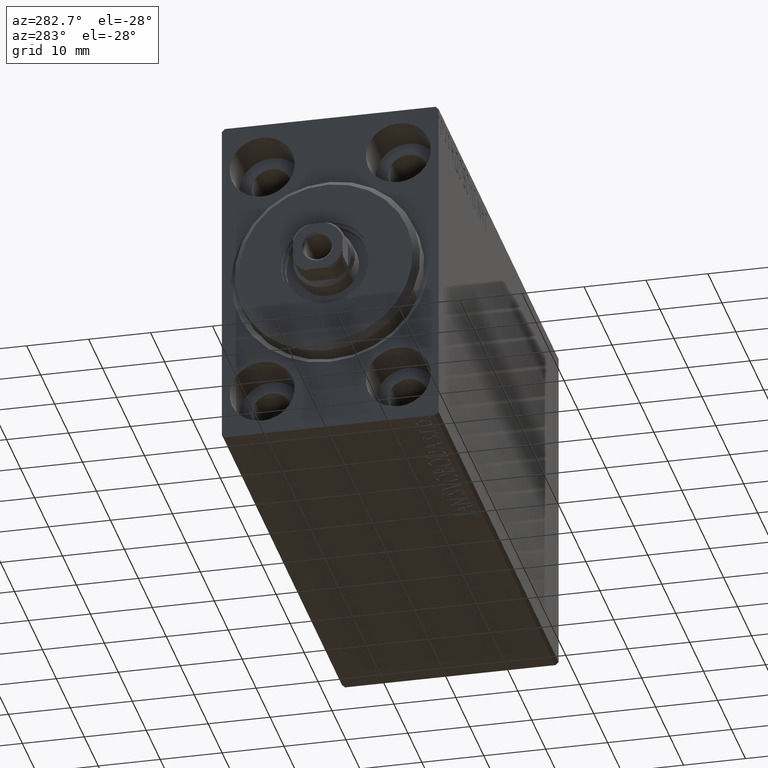
[diagram: clean part render]
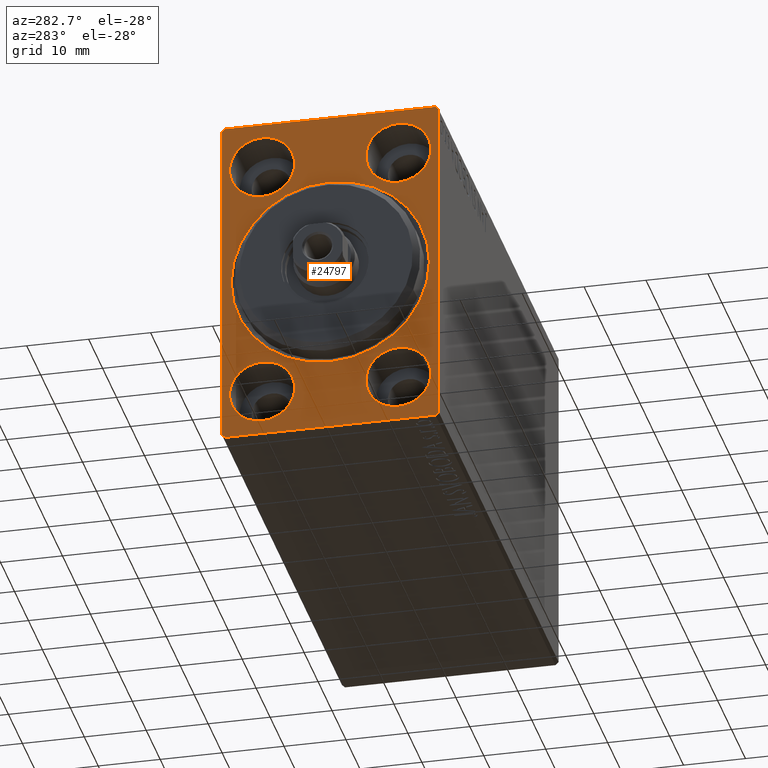
[diagram: same view with one face highlighted and labeled with its STEP entity id]
A machine part, auxiliary view. The second image highlights one B-rep face of the part: STEP entity #24797.
In plain terms, the highlighted planar face has unit normal (1, 0, 0).
Its self-contained STEP definition (entity closure, byte-faithful):
#317 = DIRECTION ( 'NONE',  ( -1.000000000000000000, 0.000000000000000000, 0.000000000000000000 ) ) ;
#969 = EDGE_LOOP ( 'NONE', ( #38564, #26691 ) ) ;
#1365 = DIRECTION ( 'NONE',  ( -0.000000000000000000, 0.7071067811865474617, 0.7071067811865474617 ) ) ;
#1456 = CARTESIAN_POINT ( 'NONE',  ( 0.000000000000000000, 0.000000000000000000, 0.000000000000000000 ) ) ;
#1699 = CARTESIAN_POINT ( 'NONE',  ( 0.000000000000000000, 17.00000000000000711, -27.50000000000000355 ) ) ;
#1811 = FACE_BOUND ( 'NONE', #10038, .T. ) ;
#1838 = CIRCLE ( 'NONE', #28082, 5.250000000000000888 ) ;
#1843 = CARTESIAN_POINT ( 'NONE',  ( 0.000000000000000000, 11.00000000000000355, 14.75000000000000000 ) ) ;
#1931 = DIRECTION ( 'NONE',  ( -0.000000000000000000, 0.7071067811865474617, -0.7071067811865474617 ) ) ;
#2011 = DIRECTION ( 'NONE',  ( 0.000000000000000000, 0.000000000000000000, 1.000000000000000000 ) ) ;
#2041 = CARTESIAN_POINT ( 'NONE',  ( 0.000000000000000000, -17.50000000000000000, -27.50000000000000355 ) ) ;
#2494 = EDGE_LOOP ( 'NONE', ( #8937, #17352 ) ) ;
#2536 = DIRECTION ( 'NONE',  ( 0.000000000000000000, -1.000000000000000000, -1.982541115402065110E-16 ) ) ;
#3260 = EDGE_LOOP ( 'NONE', ( #12695, #27696 ) ) ;
#3670 = CARTESIAN_POINT ( 'NONE',  ( 0.000000000000000000, -17.50000000000000000, 27.49999999999999645 ) ) ;
#3782 = DIRECTION ( 'NONE',  ( 0.000000000000000000, 0.000000000000000000, 1.000000000000000000 ) ) ;
#3990 = CIRCLE ( 'NONE', #34477, 5.250000000000000888 ) ;
#4132 = VERTEX_POINT ( 'NONE', #13405 ) ;
#4502 = VECTOR ( 'NONE', #1931, 1000.000000000000114 ) ;
#5329 = DIRECTION ( 'NONE',  ( 0.000000000000000000, 0.000000000000000000, 1.000000000000000000 ) ) ;
#5359 = FACE_OUTER_BOUND ( 'NONE', #9148, .T. ) ;
#5375 = LINE ( 'NONE', #12473, #32858 ) ;
#5395 = EDGE_CURVE ( 'NONE', #4132, #6939, #7242, .T. ) ;
#5831 = AXIS2_PLACEMENT_3D ( 'NONE', #27326, #6236, #6669 ) ;
#6236 = DIRECTION ( 'NONE',  ( -1.000000000000000000, 0.000000000000000000, 0.000000000000000000 ) ) ;
#6251 = EDGE_CURVE ( 'NONE', #13519, #31267, #42665, .T. ) ;
#6655 = ORIENTED_EDGE ( 'NONE', *, *, #13087, .T. ) ;
#6669 = DIRECTION ( 'NONE',  ( 0.000000000000000000, 0.000000000000000000, 1.000000000000000000 ) ) ;
#6784 = CARTESIAN_POINT ( 'NONE',  ( 0.000000000000000000, 11.00000000000000355, 25.25000000000000000 ) ) ;
#6939 = VERTEX_POINT ( 'NONE', #14641 ) ;
#7201 = CARTESIAN_POINT ( 'NONE',  ( 0.000000000000000000, -17.00000000000000000, -27.50000000000000355 ) ) ;
#7242 = CIRCLE ( 'NONE', #20018, 5.250000000000000888 ) ;
#7615 = AXIS2_PLACEMENT_3D ( 'NONE', #18632, #21533, #18195 ) ;
#7653 = CARTESIAN_POINT ( 'NONE',  ( 0.000000000000000000, -11.00000000000000355, -20.00000000000000000 ) ) ;
#7685 = DIRECTION ( 'NONE',  ( -1.000000000000000000, 0.000000000000000000, 0.000000000000000000 ) ) ;
#7820 = FACE_BOUND ( 'NONE', #17273, .T. ) ;
#7905 = VERTEX_POINT ( 'NONE', #20613 ) ;
#8070 = VERTEX_POINT ( 'NONE', #1699 ) ;
#8405 = CARTESIAN_POINT ( 'NONE',  ( 0.000000000000000000, 11.00000000000000355, -25.25000000000000000 ) ) ;
#8589 = CARTESIAN_POINT ( 'NONE',  ( 0.000000000000000000, 17.00000000000001421, 27.50000000000000355 ) ) ;
#8914 = PLANE ( 'NONE',  #20999 ) ;
#8937 = ORIENTED_EDGE ( 'NONE', *, *, #6251, .F. ) ;
#9104 = ORIENTED_EDGE ( 'NONE', *, *, #15000, .T. ) ;
#9131 = FACE_BOUND ( 'NONE', #2494, .T. ) ;
#9148 = EDGE_LOOP ( 'NONE', ( #41014, #38201, #14049, #9104, #43409, #22765, #21134, #6655 ) ) ;
#10038 = EDGE_LOOP ( 'NONE', ( #25806, #13163 ) ) ;
#10085 = AXIS2_PLACEMENT_3D ( 'NONE', #7653, #317, #41367 ) ;
#10361 = EDGE_CURVE ( 'NONE', #14298, #40046, #42661, .T. ) ;
#10526 = DIRECTION ( 'NONE',  ( 0.000000000000000000, 0.000000000000000000, 1.000000000000000000 ) ) ;
#11405 = CARTESIAN_POINT ( 'NONE',  ( 0.000000000000000000, 17.50000000000000000, 27.00000000000001776 ) ) ;
#11658 = VERTEX_POINT ( 'NONE', #41506 ) ;
#11787 = VECTOR ( 'NONE', #2536, 1000.000000000000000 ) ;
#11810 = FACE_BOUND ( 'NONE', #3260, .T. ) ;
#12023 = LINE ( 'NONE', #18465, #40714 ) ;
#12353 = LINE ( 'NONE', #8589, #4502 ) ;
#12473 = CARTESIAN_POINT ( 'NONE',  ( 0.000000000000000000, 17.50000000000000711, -27.00000000000000355 ) ) ;
#12695 = ORIENTED_EDGE ( 'NONE', *, *, #26855, .F. ) ;
#12864 = DIRECTION ( 'NONE',  ( -1.000000000000000000, 0.000000000000000000, 0.000000000000000000 ) ) ;
#13087 = EDGE_CURVE ( 'NONE', #39606, #35018, #17644, .T. ) ;
#13163 = ORIENTED_EDGE ( 'NONE', *, *, #24568, .F. ) ;
#13405 = CARTESIAN_POINT ( 'NONE',  ( 0.000000000000000000, -11.00000000000000355, 14.75000000000000000 ) ) ;
#13491 = EDGE_CURVE ( 'NONE', #18463, #21503, #25244, .T. ) ;
#13519 = VERTEX_POINT ( 'NONE', #29385 ) ;
#13894 = DIRECTION ( 'NONE',  ( 0.000000000000000000, 0.000000000000000000, -1.000000000000000000 ) ) ;
#14049 = ORIENTED_EDGE ( 'NONE', *, *, #26887, .F. ) ;
#14298 = VERTEX_POINT ( 'NONE', #14379 ) ;
#14379 = CARTESIAN_POINT ( 'NONE',  ( 0.000000000000000000, 11.00000000000000355, -14.75000000000000000 ) ) ;
#14469 = EDGE_CURVE ( 'NONE', #29636, #35018, #41820, .T. ) ;
#14641 = CARTESIAN_POINT ( 'NONE',  ( 0.000000000000000000, -11.00000000000000355, 25.25000000000000000 ) ) ;
#14686 = CARTESIAN_POINT ( 'NONE',  ( 0.000000000000000000, -11.00000000000000355, 20.00000000000000000 ) ) ;
#14843 = VERTEX_POINT ( 'NONE', #24172 ) ;
#15000 = EDGE_CURVE ( 'NONE', #7905, #21503, #12353, .T. ) ;
#15005 = DIRECTION ( 'NONE',  ( 0.000000000000000000, 0.000000000000000000, -1.000000000000000000 ) ) ;
#15158 = DIRECTION ( 'NONE',  ( 0.000000000000000000, -0.7071067811865474617, -0.7071067811865474617 ) ) ;
#15665 = EDGE_CURVE ( 'NONE', #18463, #8070, #5375, .T. ) ;
#16014 = CARTESIAN_POINT ( 'NONE',  ( 0.000000000000000000, 0.000000000000000000, 0.000000000000000000 ) ) ;
#16704 = AXIS2_PLACEMENT_3D ( 'NONE', #22952, #42677, #39582 ) ;
#16801 = CIRCLE ( 'NONE', #27423, 5.250000000000000888 ) ;
#17273 = EDGE_LOOP ( 'NONE', ( #36974, #19720 ) ) ;
#17352 = ORIENTED_EDGE ( 'NONE', *, *, #27560, .F. ) ;
#17644 = LINE ( 'NONE', #7201, #42716 ) ;
#17769 = DIRECTION ( 'NONE',  ( -1.000000000000000000, 0.000000000000000000, 0.000000000000000000 ) ) ;
#18195 = DIRECTION ( 'NONE',  ( 0.000000000000000000, 0.000000000000000000, -1.000000000000000000 ) ) ;
#18292 = DIRECTION ( 'NONE',  ( -0.000000000000000000, -0.7071067811865474617, 0.7071067811865474617 ) ) ;
#18463 = VERTEX_POINT ( 'NONE', #40830 ) ;
#18465 = CARTESIAN_POINT ( 'NONE',  ( 0.000000000000000000, -17.50000000000000000, 26.99999999999999645 ) ) ;
#18632 = CARTESIAN_POINT ( 'NONE',  ( 0.000000000000000000, 0.000000000000000000, 0.000000000000000000 ) ) ;
#19106 = DIRECTION ( 'NONE',  ( -1.000000000000000000, 0.000000000000000000, 0.000000000000000000 ) ) ;
#19424 = CARTESIAN_POINT ( 'NONE',  ( 0.000000000000000000, 17.50000000000000000, 27.50000000000000355 ) ) ;
#19623 = CIRCLE ( 'NONE', #23878, 5.250000000000000888 ) ;
#19720 = ORIENTED_EDGE ( 'NONE', *, *, #43587, .T. ) ;
#20018 = AXIS2_PLACEMENT_3D ( 'NONE', #14686, #33830, #10526 ) ;
#20138 = VECTOR ( 'NONE', #13894, 1000.000000000000000 ) ;
#20369 = CIRCLE ( 'NONE', #27435, 15.99999999999998579 ) ;
#20613 = CARTESIAN_POINT ( 'NONE',  ( 0.000000000000000000, 17.00000000000001421, 27.50000000000000355 ) ) ;
#20999 = AXIS2_PLACEMENT_3D ( 'NONE', #16014, #43061, #35543 ) ;
#21134 = ORIENTED_EDGE ( 'NONE', *, *, #25633, .F. ) ;
#21233 = DIRECTION ( 'NONE',  ( 0.000000000000000000, 0.000000000000000000, 1.000000000000000000 ) ) ;
#21503 = VERTEX_POINT ( 'NONE', #11405 ) ;
#21533 = DIRECTION ( 'NONE',  ( 1.000000000000000000, 0.000000000000000000, 0.000000000000000000 ) ) ;
#21754 = CARTESIAN_POINT ( 'NONE',  ( 0.000000000000000000, -17.50000000000000000, 26.99999999999999645 ) ) ;
#22036 = DIRECTION ( 'NONE',  ( 0.000000000000000000, 1.000000000000000000, 0.000000000000000000 ) ) ;
#22110 = DIRECTION ( 'NONE',  ( 1.000000000000000000, 0.000000000000000000, 0.000000000000000000 ) ) ;
#22701 = CARTESIAN_POINT ( 'NONE',  ( 0.000000000000000000, 0.000000000000000000, 15.99999999999998579 ) ) ;
#22765 = ORIENTED_EDGE ( 'NONE', *, *, #15665, .T. ) ;
#22952 = CARTESIAN_POINT ( 'NONE',  ( 0.000000000000000000, 11.00000000000000355, -20.00000000000000000 ) ) ;
#23878 = AXIS2_PLACEMENT_3D ( 'NONE', #35731, #12864, #5329 ) ;
#24061 = CARTESIAN_POINT ( 'NONE',  ( 0.000000000000000000, -17.50000000000000000, -27.00000000000000355 ) ) ;
#24172 = CARTESIAN_POINT ( 'NONE',  ( 0.000000000000000000, 1.959434878635763554E-15, -15.99999999999998579 ) ) ;
#24568 = EDGE_CURVE ( 'NONE', #40046, #14298, #26034, .T. ) ;
#24797 = ADVANCED_FACE ( 'NONE', ( #7820, #1811, #35763, #11810, #9131, #5359 ), #8914, .F. ) ;
#25036 = EDGE_CURVE ( 'NONE', #6939, #4132, #1838, .T. ) ;
#25244 = LINE ( 'NONE', #31889, #37807 ) ;
#25633 = EDGE_CURVE ( 'NONE', #39606, #8070, #28686, .T. ) ;
#25806 = ORIENTED_EDGE ( 'NONE', *, *, #10361, .F. ) ;
#26034 = CIRCLE ( 'NONE', #16704, 5.250000000000000888 ) ;
#26691 = ORIENTED_EDGE ( 'NONE', *, *, #5395, .F. ) ;
#26855 = EDGE_CURVE ( 'NONE', #33854, #43906, #3990, .T. ) ;
#26887 = EDGE_CURVE ( 'NONE', #7905, #11658, #32521, .T. ) ;
#27127 = VERTEX_POINT ( 'NONE', #22701 ) ;
#27326 = CARTESIAN_POINT ( 'NONE',  ( 0.000000000000000000, 11.00000000000000355, -20.00000000000000000 ) ) ;
#27423 = AXIS2_PLACEMENT_3D ( 'NONE', #32632, #19106, #2011 ) ;
#27435 = AXIS2_PLACEMENT_3D ( 'NONE', #1456, #22110, #15005 ) ;
#27555 = CARTESIAN_POINT ( 'NONE',  ( 0.000000000000000000, -11.00000000000000355, 20.00000000000000000 ) ) ;
#27560 = EDGE_CURVE ( 'NONE', #31267, #13519, #19623, .T. ) ;
#27696 = ORIENTED_EDGE ( 'NONE', *, *, #28333, .F. ) ;
#27992 = CARTESIAN_POINT ( 'NONE',  ( 0.000000000000000000, -11.00000000000000355, -25.25000000000000000 ) ) ;
#28082 = AXIS2_PLACEMENT_3D ( 'NONE', #27555, #17769, #3782 ) ;
#28333 = EDGE_CURVE ( 'NONE', #43906, #33854, #16801, .T. ) ;
#28560 = DIRECTION ( 'NONE',  ( 0.000000000000000000, -1.261617073437677752E-16, 1.000000000000000000 ) ) ;
#28686 = LINE ( 'NONE', #2041, #38679 ) ;
#29385 = CARTESIAN_POINT ( 'NONE',  ( 0.000000000000000000, -11.00000000000000355, -14.75000000000000000 ) ) ;
#29603 = EDGE_CURVE ( 'NONE', #27127, #14843, #40195, .T. ) ;
#29636 = VERTEX_POINT ( 'NONE', #21754 ) ;
#31267 = VERTEX_POINT ( 'NONE', #27992 ) ;
#31889 = CARTESIAN_POINT ( 'NONE',  ( 0.000000000000000000, 17.50000000000000711, -27.50000000000000355 ) ) ;
#32521 = LINE ( 'NONE', #19424, #11787 ) ;
#32632 = CARTESIAN_POINT ( 'NONE',  ( 0.000000000000000000, 11.00000000000000355, 20.00000000000000000 ) ) ;
#32858 = VECTOR ( 'NONE', #15158, 1000.000000000000114 ) ;
#33830 = DIRECTION ( 'NONE',  ( -1.000000000000000000, 0.000000000000000000, 0.000000000000000000 ) ) ;
#33854 = VERTEX_POINT ( 'NONE', #6784 ) ;
#34477 = AXIS2_PLACEMENT_3D ( 'NONE', #38076, #7685, #21233 ) ;
#35018 = VERTEX_POINT ( 'NONE', #24061 ) ;
#35543 = DIRECTION ( 'NONE',  ( 0.000000000000000000, 0.000000000000000000, -1.000000000000000000 ) ) ;
#35731 = CARTESIAN_POINT ( 'NONE',  ( 0.000000000000000000, -11.00000000000000355, -20.00000000000000000 ) ) ;
#35763 = FACE_BOUND ( 'NONE', #969, .T. ) ;
#36147 = CARTESIAN_POINT ( 'NONE',  ( 0.000000000000000000, -17.00000000000000000, -27.50000000000000355 ) ) ;
#36974 = ORIENTED_EDGE ( 'NONE', *, *, #29603, .T. ) ;
#37656 = EDGE_CURVE ( 'NONE', #29636, #11658, #12023, .T. ) ;
#37807 = VECTOR ( 'NONE', #28560, 1000.000000000000000 ) ;
#38076 = CARTESIAN_POINT ( 'NONE',  ( 0.000000000000000000, 11.00000000000000355, 20.00000000000000000 ) ) ;
#38201 = ORIENTED_EDGE ( 'NONE', *, *, #37656, .T. ) ;
#38564 = ORIENTED_EDGE ( 'NONE', *, *, #25036, .F. ) ;
#38679 = VECTOR ( 'NONE', #22036, 1000.000000000000000 ) ;
#39582 = DIRECTION ( 'NONE',  ( 0.000000000000000000, 0.000000000000000000, 1.000000000000000000 ) ) ;
#39606 = VERTEX_POINT ( 'NONE', #36147 ) ;
#40046 = VERTEX_POINT ( 'NONE', #8405 ) ;
#40195 = CIRCLE ( 'NONE', #7615, 15.99999999999998579 ) ;
#40714 = VECTOR ( 'NONE', #1365, 1000.000000000000114 ) ;
#40830 = CARTESIAN_POINT ( 'NONE',  ( 0.000000000000000000, 17.50000000000000711, -27.00000000000000355 ) ) ;
#41014 = ORIENTED_EDGE ( 'NONE', *, *, #14469, .F. ) ;
#41367 = DIRECTION ( 'NONE',  ( 0.000000000000000000, 0.000000000000000000, 1.000000000000000000 ) ) ;
#41506 = CARTESIAN_POINT ( 'NONE',  ( 0.000000000000000000, -17.00000000000000000, 27.49999999999999645 ) ) ;
#41820 = LINE ( 'NONE', #3670, #20138 ) ;
#42661 = CIRCLE ( 'NONE', #5831, 5.250000000000000888 ) ;
#42665 = CIRCLE ( 'NONE', #10085, 5.250000000000000888 ) ;
#42677 = DIRECTION ( 'NONE',  ( -1.000000000000000000, 0.000000000000000000, 0.000000000000000000 ) ) ;
#42716 = VECTOR ( 'NONE', #18292, 1000.000000000000114 ) ;
#43061 = DIRECTION ( 'NONE',  ( 1.000000000000000000, 0.000000000000000000, 0.000000000000000000 ) ) ;
#43409 = ORIENTED_EDGE ( 'NONE', *, *, #13491, .F. ) ;
#43587 = EDGE_CURVE ( 'NONE', #14843, #27127, #20369, .T. ) ;
#43906 = VERTEX_POINT ( 'NONE', #1843 ) ;